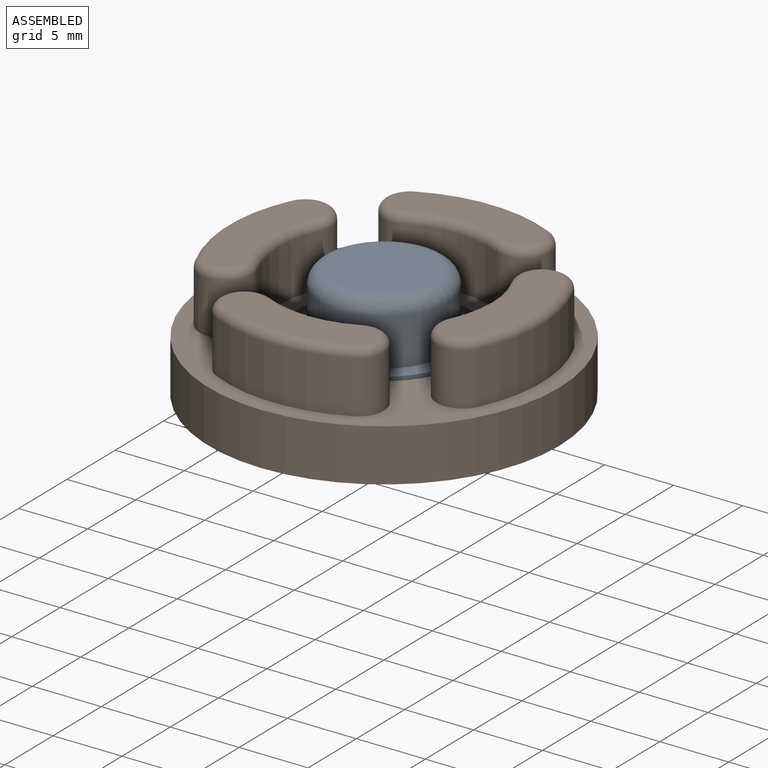
[diagram: assembled view]
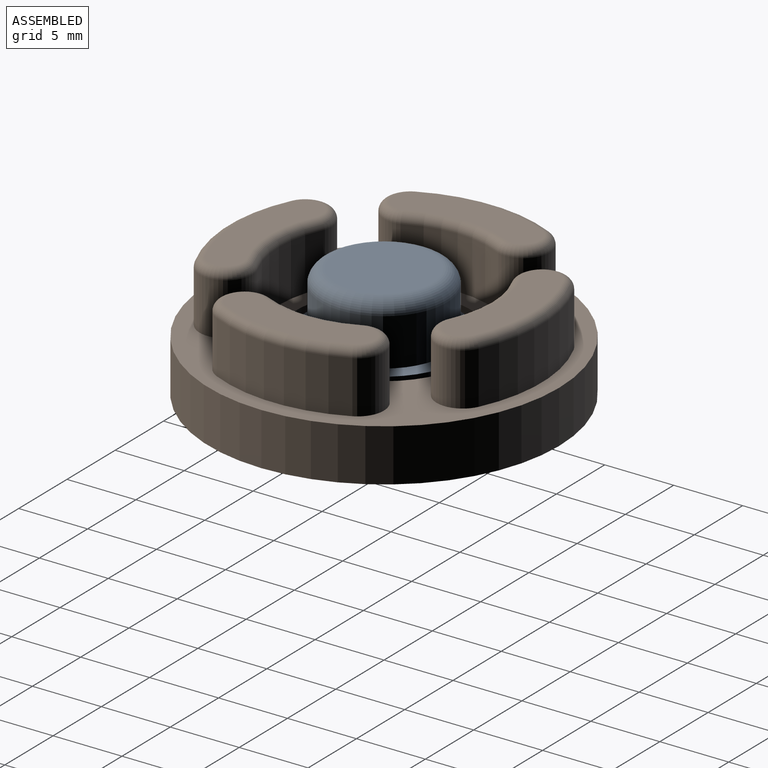
[diagram: assembled view, second angle]
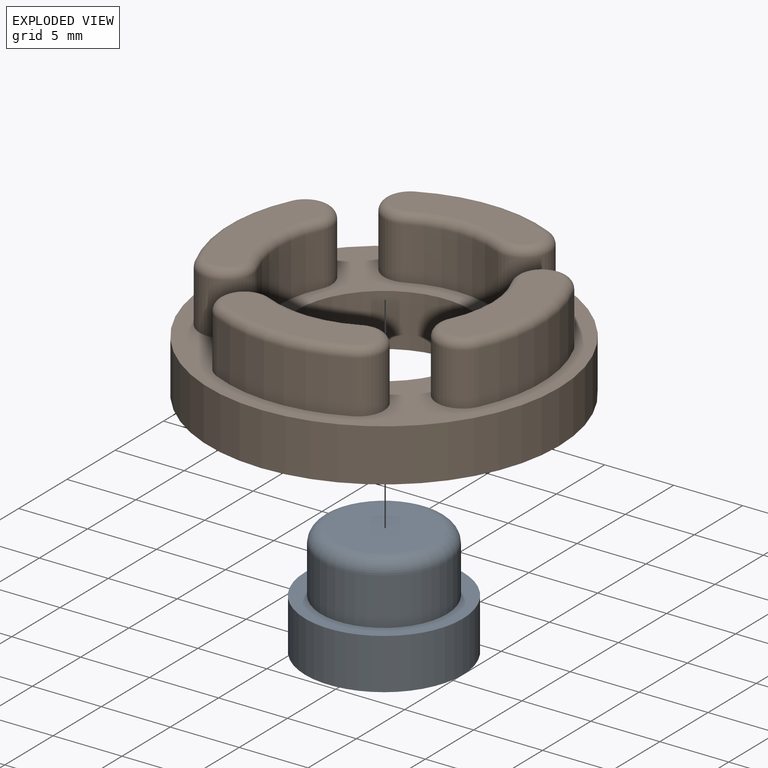
[diagram: exploded view]
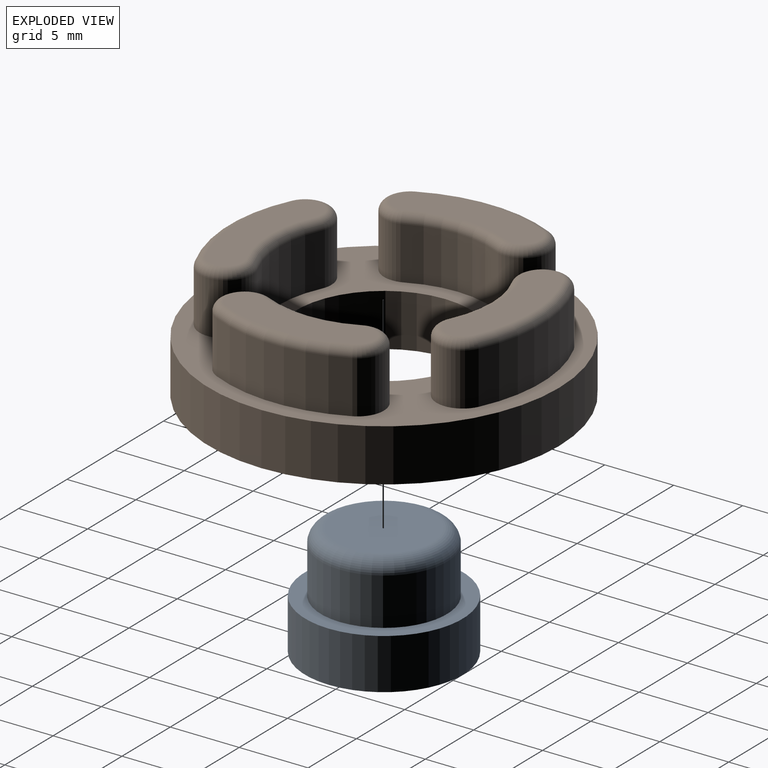
[diagram: exploded view, second angle]
ASSEMBLY  parts=2 mates=2
PART A: 6 faces, bbox 11.4x11.4x8.1 mm
  f0: cylinder r=5.71mm len=11.43mm, axis (0,0,-1), area 132.3mm2, adj f1,f2
  f1: plane 11.43x11.43mm, normal (0,0,1), area 36.9mm2, adj f0,f3
  f2: plane 11.43x11.43mm, normal (0,0,-1), area 102.6mm2, adj f0
  f3: cylinder r=4.57mm len=9.14mm, axis (0,0,-1), area 98.5mm2, adj f1,f5
  f4: plane 7.11x7.11mm, normal (0,0,1), area 39.7mm2, adj f5
  f5: torus R=3.56mm, axis (0,0,1), area 42.1mm2, adj f3,f4
PART B: 40 faces, bbox 25.4x25.4x8.3 mm
  f0: torus R=1.27mm, axis (0,0,1), area 5.2mm2, adj f1,f2,f5,f8
  f1: torus R=8.26mm, axis (0,0,1), area 7mm2, adj f0,f3,f6,f8
  f2: torus R=10.79mm, axis (0,0,1), area 10mm2, adj f0,f3,f7,f8
  f3: torus R=1.27mm, axis (0,0,1), area 5.2mm2, adj f1,f2,f4,f8
  f4: cylinder r=1.91mm len=3.81mm, axis (0,0,-1), area 22.8mm2, adj f3,f6,f7,f27
  f5: cylinder r=1.91mm len=3.81mm, axis (0,0,-1), area 22.8mm2, adj f0,f6,f7,f27
  f6: cylinder r=7.62mm len=6.57mm, axis (0,0,-1), area 25.9mm2, adj f1,f4,f5,f27
  f7: cylinder r=11.43mm len=9.85mm, axis (0,0,-1), area 38.8mm2, adj f2,f4,f5,f27
  f8: plane 10.75x3.47mm, normal (0,0,1), area 26.6mm2, adj f0,f1,f2,f3
  f9: torus R=1.27mm, axis (0,0,1), area 5.2mm2, adj f10,f11,f14,f17
  f10: torus R=8.26mm, axis (0,0,1), area 7mm2, adj f9,f12,f15,f17
  f11: torus R=10.79mm, axis (0,0,1), area 10mm2, adj f9,f12,f16,f17
  f12: torus R=1.27mm, axis (0,0,1), area 5.2mm2, adj f10,f11,f13,f17
  f13: cylinder r=1.91mm len=3.81mm, axis (0,0,-1), area 22.8mm2, adj f12,f15,f16,f27
  f14: cylinder r=1.91mm len=3.81mm, axis (0,0,-1), area 22.8mm2, adj f9,f15,f16,f27
  f15: cylinder r=7.62mm len=6.57mm, axis (0,0,-1), area 25.9mm2, adj f10,f13,f14,f27
  f16: cylinder r=11.43mm len=9.85mm, axis (0,0,-1), area 38.8mm2, adj f11,f13,f14,f27
  f17: plane 10.75x3.47mm, normal (0,0,1), area 26.6mm2, adj f9,f10,f11,f12
  f18: torus R=1.27mm, axis (0,0,1), area 5.2mm2, adj f19,f20,f23,f26
  f19: torus R=8.26mm, axis (0,0,1), area 7mm2, adj f18,f21,f24,f26
  f20: torus R=10.79mm, axis (0,0,1), area 10mm2, adj f18,f21,f25,f26
  f21: torus R=1.27mm, axis (0,0,1), area 5.2mm2, adj f19,f20,f22,f26
  f22: cylinder r=1.91mm len=3.81mm, axis (0,0,-1), area 22.8mm2, adj f21,f24,f25,f27
  f23: cylinder r=1.91mm len=3.81mm, axis (0,0,-1), area 22.8mm2, adj f18,f24,f25,f27
  f24: cylinder r=7.62mm len=6.57mm, axis (0,0,-1), area 25.9mm2, adj f19,f22,f23,f27
  f25: cylinder r=11.43mm len=9.85mm, axis (0,0,-1), area 38.8mm2, adj f20,f22,f23,f27
  f26: plane 10.75x3.47mm, normal (0,0,1), area 26.6mm2, adj f18,f19,f20,f21
  f27: plane 25.4x25.4mm, normal (0,0,1), area 205.1mm2, adj f4,f5,f6,f7,f13,f14,f15,f16
  f28: cylinder r=12.7mm len=25.4mm, axis (0,0,-1), area 304mm2, adj f27,f29
  f29: plane 25.4x25.4mm, normal (0,0,-1), area 380mm2, adj f28,f39
  f30: cylinder r=7.62mm len=6.57mm, axis (0,0,-1), area 25.9mm2, adj f27,f33,f34,f36
  f31: cylinder r=11.43mm len=9.85mm, axis (0,0,-1), area 38.8mm2, adj f27,f33,f34,f37
  f32: plane 10.75x3.47mm, normal (0,0,1), area 26.6mm2, adj f35,f36,f37,f38
  f33: cylinder r=1.91mm len=3.81mm, axis (0,0,-1), area 22.8mm2, adj f27,f30,f31,f35
  f34: cylinder r=1.91mm len=3.81mm, axis (0,0,-1), area 22.8mm2, adj f27,f30,f31,f38
  f35: torus R=1.27mm, axis (0,0,1), area 5.2mm2, adj f32,f33,f36,f37
  f36: torus R=8.26mm, axis (0,0,1), area 7mm2, adj f30,f32,f35,f38
  f37: torus R=10.79mm, axis (0,0,1), area 10mm2, adj f31,f32,f35,f38
  f38: torus R=1.27mm, axis (0,0,1), area 5.2mm2, adj f32,f34,f36,f37
  f39: cylinder r=6.35mm len=12.7mm, axis (0,0,1), area 152mm2, adj f27,f29
PLACE A at identity
PLACE B t=(0,0,-0.13)mm
MATE cylindrical B.f39 <-> A.f0  axis (0,0,1) through (0,0,1.78)mm
MATE planar A.f0 <-> B.f27  axis (0,0,1) through (0,0,3.68)mm
